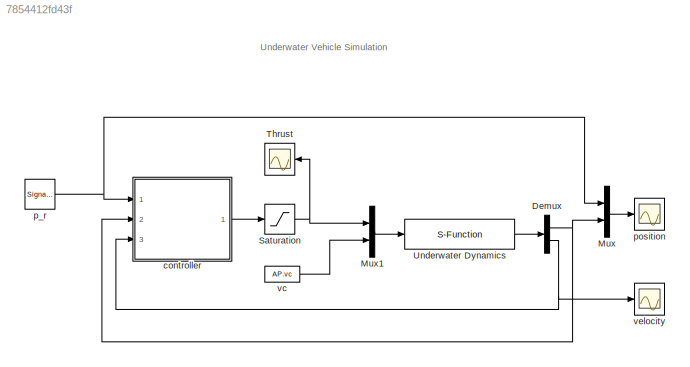
MODEL slx_7854412fd43f
KIND model
CONFIG AbsTol = auto
CONFIG FixedStep = auto
CONFIG InitFcn = param
CONFIG MaxStep = auto
CONFIG MinStep = auto
CONFIG RelTol = 1e-3
CONFIG SampleTimeConstraint = Unconstrained
CONFIG Solver = ode45
CONFIG SolverMode = Auto
CONFIG SolverName = ode45
CONFIG StartTime = 0.0
CONFIG StopTime = 200
BLOCK [Demux] Demux
  DisplayOption = bar
  Outputs = 2
  Ports = [1, 2]
BLOCK [Mux] Mux
  DisplayOption = bar
  Inputs = 2
  Ports = [2, 1]
BLOCK [Mux] Mux1
  DisplayOption = bar
  Inputs = 2
  Ports = [2, 1]
BLOCK [Saturate] Saturation
  InputPortMap = u0
  LowerLimit = -P.Tmax
  Ports = [1, 1]
  UpperLimit = P.Tmax
BLOCK [Scope] Thrust
  DataFormat = StructureWithTime
  Decimation = 1
  Grid = on
  LimitDataPoints = off
  MaxDataPoints = 5000
  Ports = [1]
  SampleInput = off
  SampleTime = -1
  SaveName = ScopeData2
  SaveToWorkspace = off
  ShowLegends = on
  TickLabels = OneTimeTick
  TimeRange = auto
  YMax = 8.41201
  YMin = -49.54515
  ZoomMode = on
BLOCK [S-Function] Underwater Dynamics
  EnableBusSupport = off
  FunctionName = underwater_dynamics
  Parameters = AP
  Ports = [1, 1]
  SFunctionDeploymentMode = off
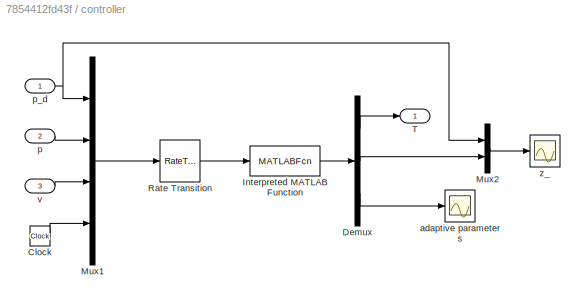
BLOCK [SubSystem] controller
  Ports = [3, 1]
  RequestExecContextInheritance = off
  Variant = off
BLOCK [Clock] controller/Clock
BLOCK [Demux] controller/Demux
  DisplayOption = bar
  Outputs = [1;1;P.num_adaptive_param]
  Ports = [1, 3]
BLOCK [MATLABFcn] controller/Interpreted MATLAB Function
  MATLABFcn = underwater_ctrl(u,P)
  OutputDimensions = 2+P.num_adaptive_param
  Ports = [1, 1]
BLOCK [Mux] controller/Mux1
  DisplayOption = bar
  Ports = [4, 1]
BLOCK [Mux] controller/Mux2
  DisplayOption = bar
  Inputs = 2
  Ports = [2, 1]
BLOCK [RateTransition] controller/Rate Transition
  OutPortSampleTime = P.Ts
BLOCK [Outport] controller/T
  IconDisplay = Port number
BLOCK [Scope] controller/adaptive parameters 
  DataFormat = StructureWithTime
  Decimation = 1
  Grid = on
  LimitDataPoints = off
  MaxDataPoints = 5000
  Ports = [1]
  SampleInput = off
  SampleTime = -1
  SaveName = ScopeData1
  SaveToWorkspace = off
  ShowLegends = off
  TickLabels = OneTimeTick
  TimeRange = 100
  YMax = 0.1933
  YMin = -0.88739
  ZoomMode = on
BLOCK [Inport] controller/p
  IconDisplay = Port number
  Port = 2
BLOCK [Inport] controller/p_d
  IconDisplay = Port number
BLOCK [Inport] controller/v
  IconDisplay = Port number
  Port = 3
BLOCK [Scope] controller/z_
  DataFormat = StructureWithTime
  Decimation = 1
  Grid = on
  LimitDataPoints = off
  MaxDataPoints = 5000
  Ports = [1]
  SampleInput = off
  SampleTime = -1
  SaveName = ScopeData1
  SaveToWorkspace = off
  ShowLegends = off
  TickLabels = OneTimeTick
  TimeRange = 100
  YMax = 1.50238
  YMin = -1.77612
  ZoomMode = on
BLOCK [SignalGenerator] p_r
  Frequency = .01
  Ports = [0, 1]
  WaveForm = square
BLOCK [Scope] position
  DataFormat = StructureWithTime
  Decimation = 1
  Grid = on
  LimitDataPoints = off
  MaxDataPoints = 5000
  Ports = [1]
  SampleInput = off
  SampleTime = -1
  SaveName = ScopeData1
  SaveToWorkspace = off
  ShowLegends = off
  TickLabels = OneTimeTick
  TimeRange = auto
  YMax = 1.46099
  YMin = -1.35991
  ZoomMode = on
BLOCK [Constant] vc
  Value = AP.vc
BLOCK [Scope] velocity
  DataFormat = StructureWithTime
  Decimation = 1
  Grid = on
  LimitDataPoints = off
  MaxDataPoints = 5000
  Ports = [1]
  SampleInput = off
  SampleTime = -1
  SaveName = ScopeData2
  SaveToWorkspace = off
  ShowLegends = off
  TickLabels = OneTimeTick
  TimeRange = auto
  YMax = 1.22311
  YMin = -1.24701
  ZoomMode = on
ANNOTATION (root): Underwater Vehicle Simulation
NET Demux:1 -> Mux:2, controller:2
NET Demux:2 -> controller:3, velocity:1
LINE Mux1:1 -> Underwater Dynamics:1
LINE Mux:1 -> position:1
NET Saturation:1 -> Mux1:1, Thrust:1
LINE Underwater Dynamics:1 -> Demux:1
LINE controller/Clock:1 -> controller/Mux1:4
LINE controller/Demux:1 -> controller/T:1
LINE controller/Demux:2 -> controller/Mux2:2
LINE controller/Demux:3 -> controller/adaptive parameters :1
LINE controller/Interpreted MATLAB Function:1 -> controller/Demux:1
LINE controller/Mux1:1 -> controller/Rate Transition:1
LINE controller/Mux2:1 -> controller/z_:1
LINE controller/Rate Transition:1 -> controller/Interpreted MATLAB Function:1
LINE controller/p:1 -> controller/Mux1:2
NET controller/p_d:1 -> controller/Mux1:1, controller/Mux2:1
LINE controller/v:1 -> controller/Mux1:3
LINE controller:1 -> Saturation:1
NET p_r:1 -> Mux:1, controller:1
LINE vc:1 -> Mux1:2
note: NET lines group one-source signal fan-out (src -> all destinations, sorted); 1:1 wires keep LINE
